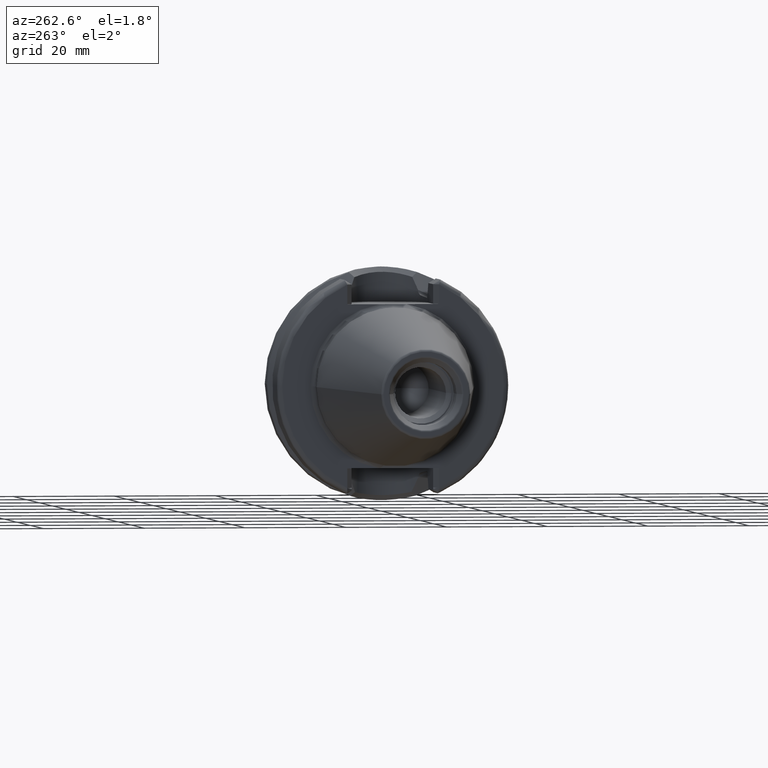
[diagram: clean part render]
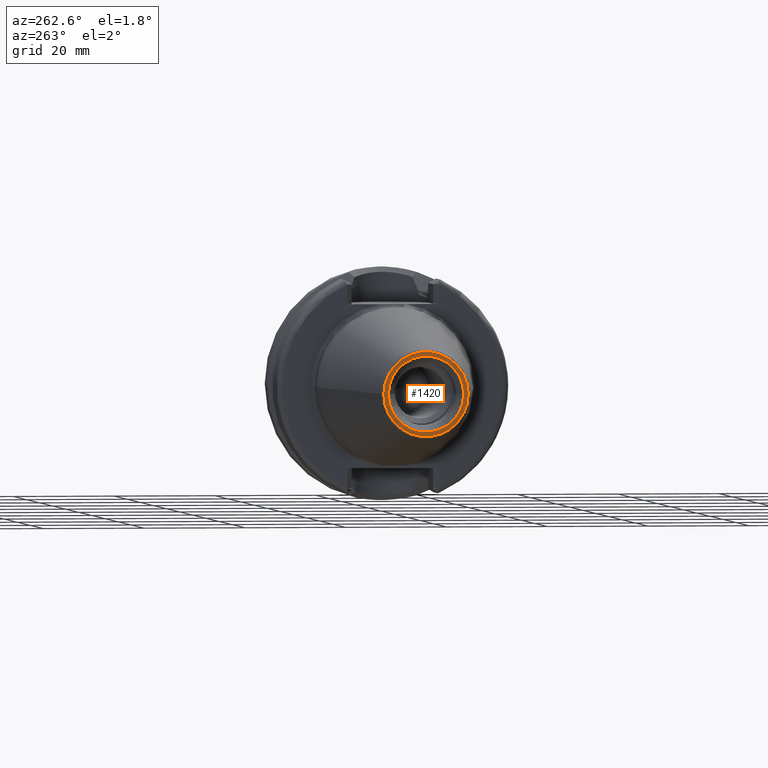
[diagram: same view with one face highlighted and labeled with its STEP entity id]
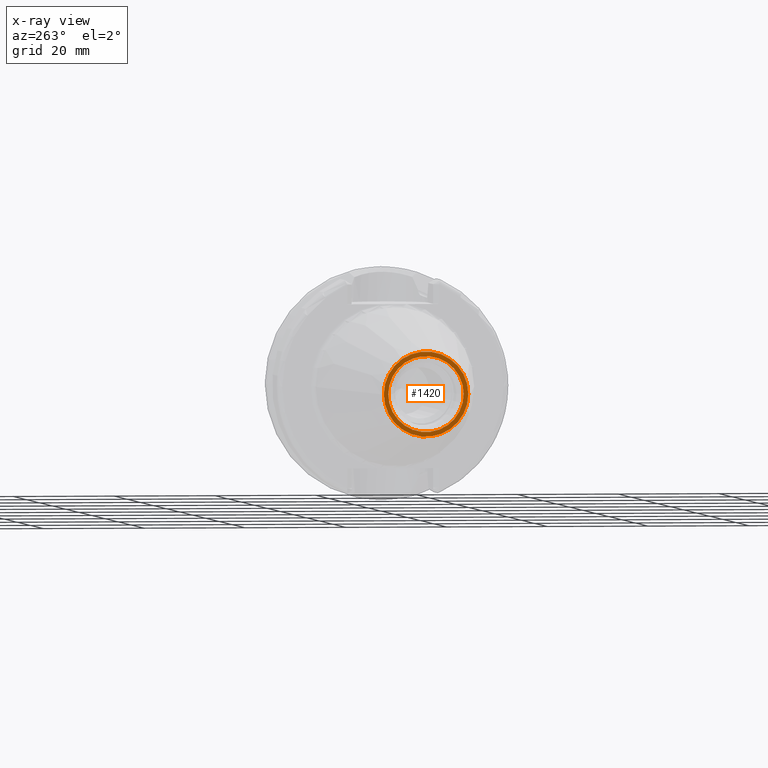
[diagram: x-ray of the same camera — body ghosted, the highlighted face saturated]
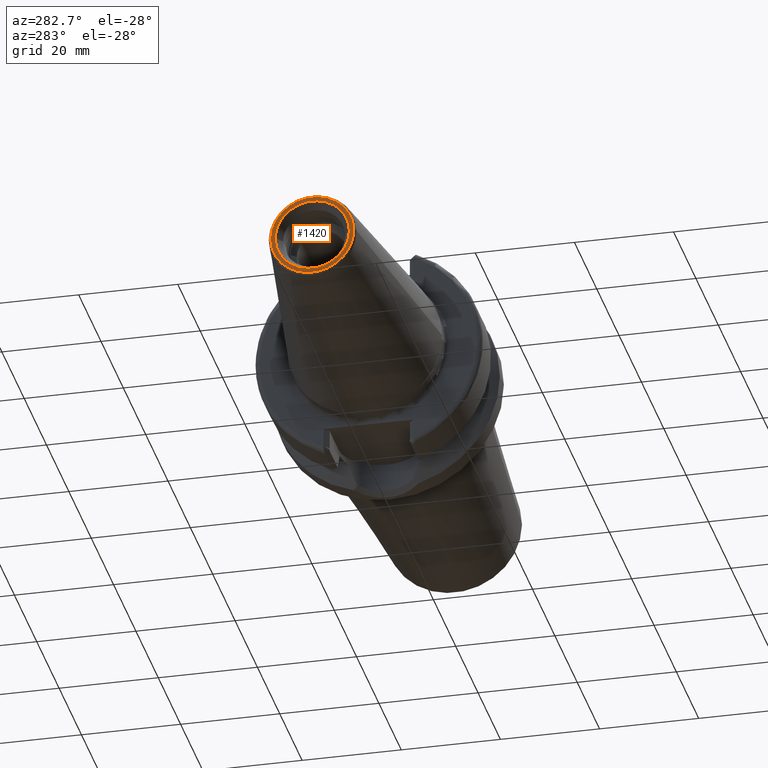
[diagram: same view with one face highlighted and labeled with its STEP entity id]
A machine part, auxiliary view. The second image highlights one B-rep face of the part: STEP entity #1420.
The next image is the same camera in x-ray: the body ghosted, the highlighted face saturated — about 0% of this face is hidden behind the body in this view.
A second angle (auxiliary view) of the same face is appended — the face is thin or edge-on in the first view.
In plain terms, the highlighted planar face has unit normal (1, 0, 0).
Its self-contained STEP definition (entity closure, byte-faithful):
#2=CARTESIAN_POINT('',(-4.84E1,0.E0,0.E0));
#3=DIRECTION('',(-1.E0,0.E0,0.E0));
#4=DIRECTION('',(0.E0,1.E0,0.E0));
#5=AXIS2_PLACEMENT_3D('',#2,#3,#4);
#7=CARTESIAN_POINT('',(-4.84E1,0.E0,0.E0));
#8=DIRECTION('',(1.E0,0.E0,0.E0));
#9=DIRECTION('',(0.E0,1.E0,0.E0));
#10=AXIS2_PLACEMENT_3D('',#7,#8,#9);
#12=CARTESIAN_POINT('',(-4.84E1,0.E0,0.E0));
#13=DIRECTION('',(1.E0,0.E0,0.E0));
#14=DIRECTION('',(0.E0,1.E0,0.E0));
#15=AXIS2_PLACEMENT_3D('',#12,#13,#14);
#17=CARTESIAN_POINT('',(-4.84E1,0.E0,0.E0));
#18=DIRECTION('',(1.E0,0.E0,0.E0));
#19=DIRECTION('',(0.E0,-1.E0,0.E0));
#20=AXIS2_PLACEMENT_3D('',#17,#18,#19);
#1157=CARTESIAN_POINT('',(-4.84E1,8.383711421639E0,0.E0));
#1159=VERTEX_POINT('',#1157);
#1161=CARTESIAN_POINT('',(-4.84E1,-8.383711421639E0,0.E0));
#1163=VERTEX_POINT('',#1161);
#1286=CARTESIAN_POINT('',(-4.84E1,7.480940107676E0,0.E0));
#1287=CARTESIAN_POINT('',(-4.84E1,-7.480940107676E0,0.E0));
#1288=VERTEX_POINT('',#1286);
#1289=VERTEX_POINT('',#1287);
#1403=CARTESIAN_POINT('',(-4.84E1,0.E0,0.E0));
#1404=DIRECTION('',(1.E0,0.E0,0.E0));
#1405=DIRECTION('',(0.E0,-1.E0,0.E0));
#1406=AXIS2_PLACEMENT_3D('',#1403,#1404,#1405);
#1407=PLANE('',#1406);
#1409=ORIENTED_EDGE('',*,*,#1408,.F.);
#1411=ORIENTED_EDGE('',*,*,#1410,.T.);
#1412=EDGE_LOOP('',(#1409,#1411));
#1413=FACE_OUTER_BOUND('',#1412,.F.);
#1415=ORIENTED_EDGE('',*,*,#1414,.F.);
#1417=ORIENTED_EDGE('',*,*,#1416,.F.);
#1418=EDGE_LOOP('',(#1415,#1417));
#1419=FACE_BOUND('',#1418,.F.);
#1420=ADVANCED_FACE('',(#1413,#1419),#1407,.F.);
#6=CIRCLE('',#5,8.383711421639E0);
#11=CIRCLE('',#10,8.383711421639E0);
#16=CIRCLE('',#15,7.480940107676E0);
#21=CIRCLE('',#20,7.480940107676E0);
#1408=EDGE_CURVE('',#1159,#1163,#6,.T.);
#1410=EDGE_CURVE('',#1159,#1163,#11,.T.);
#1414=EDGE_CURVE('',#1288,#1289,#16,.T.);
#1416=EDGE_CURVE('',#1289,#1288,#21,.T.);